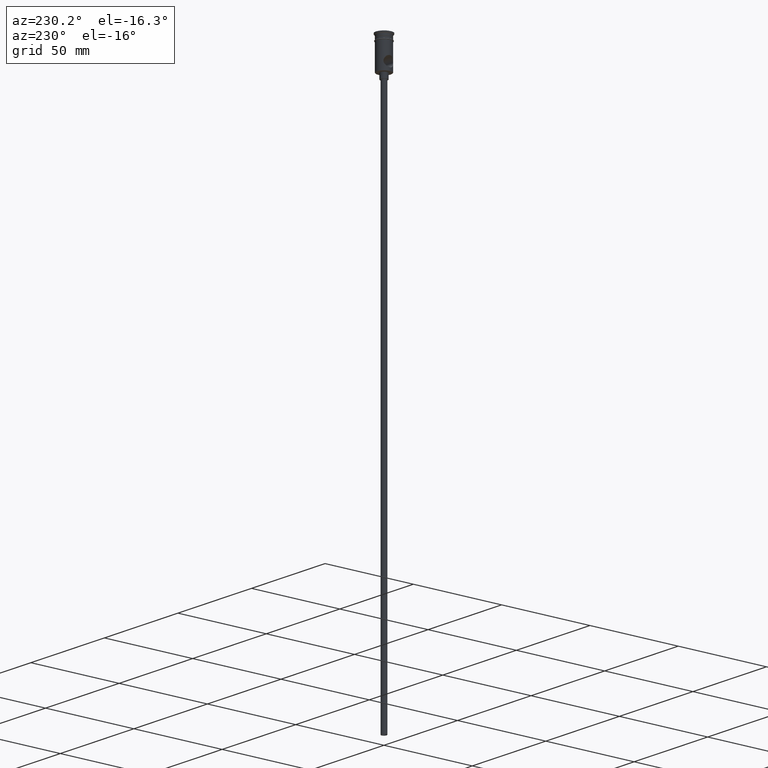
[diagram: clean part render]
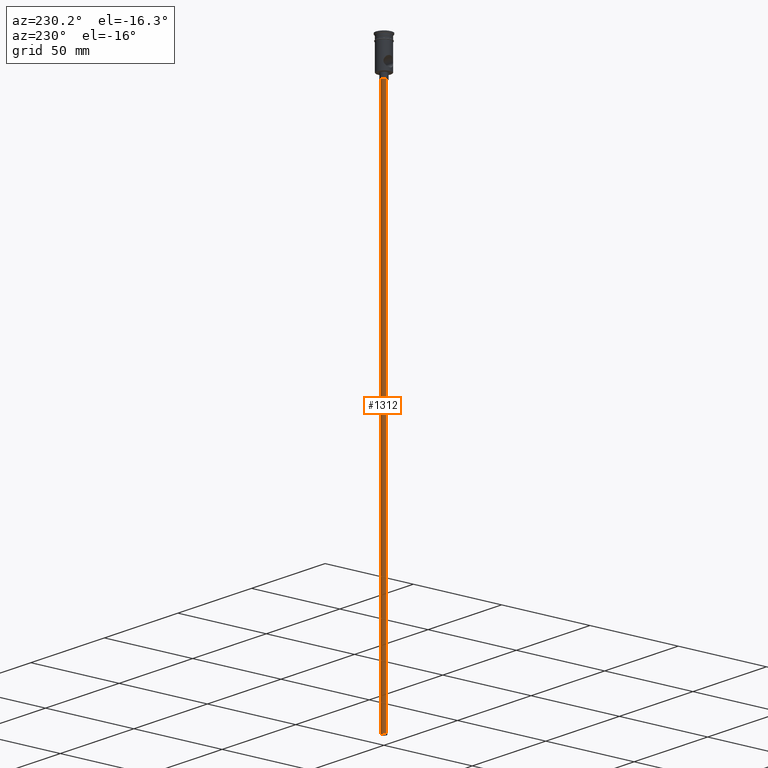
[diagram: same view with one face highlighted and labeled with its STEP entity id]
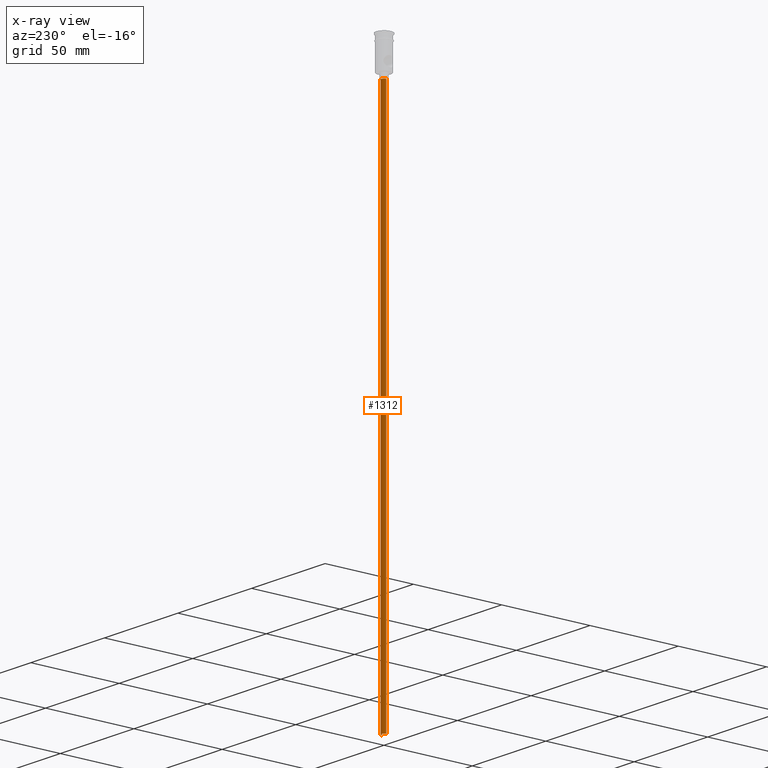
[diagram: x-ray of the same camera — body ghosted, the highlighted face saturated]
A machine part, auxiliary view. The second image highlights one B-rep face of the part: STEP entity #1312.
The next image is the same camera in x-ray: the body ghosted, the highlighted face saturated — about 0% of this face is hidden behind the body in this view.
In plain terms, the highlighted cylindrical surface (edge-blend (fillet) strip) has radius 1.5 mm, axis along (-0, -0, 1).
Its self-contained STEP definition (entity closure, byte-faithful):
#24 = EDGE_CURVE ( 'NONE', #743, #1382, #341, .T. ) ;
#40 = ORIENTED_EDGE ( 'NONE', *, *, #1303, .F. ) ;
#50 = FACE_OUTER_BOUND ( 'NONE', #215, .T. ) ;
#72 = DIRECTION ( 'NONE',  ( 1.000000000000000000, 0.000000000000000000, 0.000000000000000000 ) ) ;
#136 = DIRECTION ( 'NONE',  ( -0.000000000000000000, -0.000000000000000000, 1.000000000000000000 ) ) ;
#177 = VECTOR ( 'NONE', #1267, 1000.000000000000000 ) ;
#215 = EDGE_LOOP ( 'NONE', ( #1419, #846, #725, #40 ) ) ;
#268 = AXIS2_PLACEMENT_3D ( 'NONE', #1026, #467, #1225 ) ;
#327 = CARTESIAN_POINT ( 'NONE',  ( 1.500000000000000222, 0.000000000000000000, -20.99999999999999645 ) ) ;
#341 = CIRCLE ( 'NONE', #268, 1.500000000000000222 ) ;
#358 = CARTESIAN_POINT ( 'NONE',  ( -1.500000000000000222, 1.836970198721030181E-16, -20.99999999999999645 ) ) ;
#386 = CYLINDRICAL_SURFACE ( 'NONE', #892, 1.500000000000000222 ) ;
#459 = VECTOR ( 'NONE', #1040, 1000.000000000000000 ) ;
#467 = DIRECTION ( 'NONE',  ( 0.000000000000000000, 0.000000000000000000, -1.000000000000000000 ) ) ;
#528 = EDGE_CURVE ( 'NONE', #1322, #743, #601, .T. ) ;
#601 = LINE ( 'NONE', #827, #177 ) ;
#725 = ORIENTED_EDGE ( 'NONE', *, *, #24, .T. ) ;
#743 = VERTEX_POINT ( 'NONE', #358 ) ;
#787 = VERTEX_POINT ( 'NONE', #1029 ) ;
#827 = CARTESIAN_POINT ( 'NONE',  ( -1.500000000000000222, 1.836970198721030181E-16, -318.0000000000000000 ) ) ;
#837 = LINE ( 'NONE', #1063, #459 ) ;
#846 = ORIENTED_EDGE ( 'NONE', *, *, #528, .T. ) ;
#849 = AXIS2_PLACEMENT_3D ( 'NONE', #878, #1174, #1403 ) ;
#878 = CARTESIAN_POINT ( 'NONE',  ( 0.000000000000000000, 0.000000000000000000, -318.0000000000000000 ) ) ;
#892 = AXIS2_PLACEMENT_3D ( 'NONE', #931, #136, #72 ) ;
#931 = CARTESIAN_POINT ( 'NONE',  ( 0.000000000000000000, 0.000000000000000000, -318.0000000000000000 ) ) ;
#954 = CARTESIAN_POINT ( 'NONE',  ( -1.500000000000000222, 1.836970198721030181E-16, -318.0000000000000000 ) ) ;
#1026 = CARTESIAN_POINT ( 'NONE',  ( 0.000000000000000000, 0.000000000000000000, -20.99999999999999645 ) ) ;
#1029 = CARTESIAN_POINT ( 'NONE',  ( 1.500000000000000222, 0.000000000000000000, -318.0000000000000000 ) ) ;
#1032 = CIRCLE ( 'NONE', #849, 1.500000000000000222 ) ;
#1040 = DIRECTION ( 'NONE',  ( -0.000000000000000000, -0.000000000000000000, 1.000000000000000000 ) ) ;
#1063 = CARTESIAN_POINT ( 'NONE',  ( 1.500000000000000222, 0.000000000000000000, -318.0000000000000000 ) ) ;
#1174 = DIRECTION ( 'NONE',  ( 0.000000000000000000, 0.000000000000000000, -1.000000000000000000 ) ) ;
#1225 = DIRECTION ( 'NONE',  ( -1.000000000000000000, 0.000000000000000000, 0.000000000000000000 ) ) ;
#1267 = DIRECTION ( 'NONE',  ( -0.000000000000000000, -0.000000000000000000, 1.000000000000000000 ) ) ;
#1303 = EDGE_CURVE ( 'NONE', #787, #1382, #837, .T. ) ;
#1312 = ADVANCED_FACE ( 'NONE', ( #50 ), #386, .T. ) ;
#1322 = VERTEX_POINT ( 'NONE', #954 ) ;
#1382 = VERTEX_POINT ( 'NONE', #327 ) ;
#1403 = DIRECTION ( 'NONE',  ( -1.000000000000000000, 0.000000000000000000, 0.000000000000000000 ) ) ;
#1415 = EDGE_CURVE ( 'NONE', #1322, #787, #1032, .T. ) ;
#1419 = ORIENTED_EDGE ( 'NONE', *, *, #1415, .F. ) ;